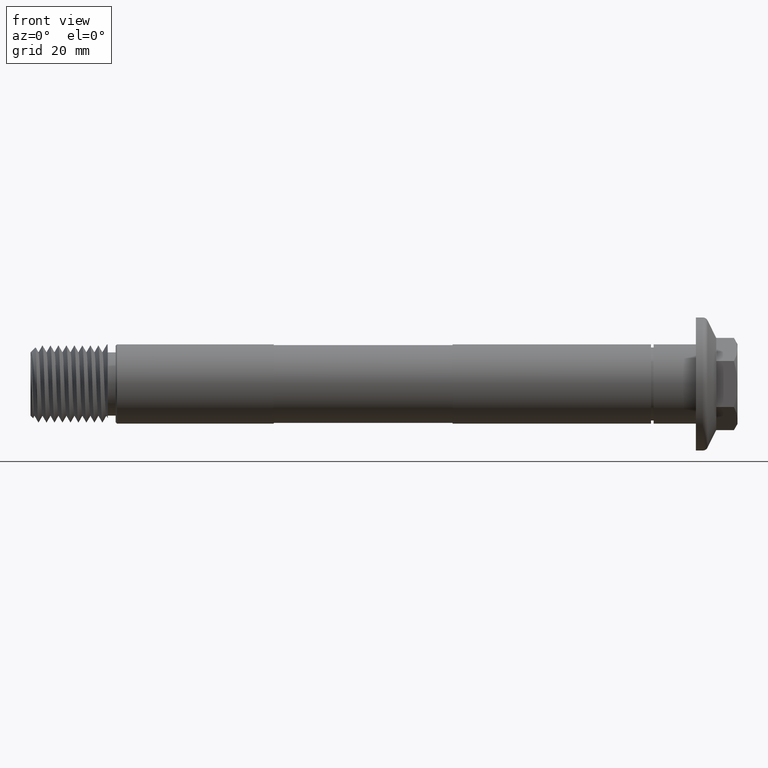
[diagram: clean part render]
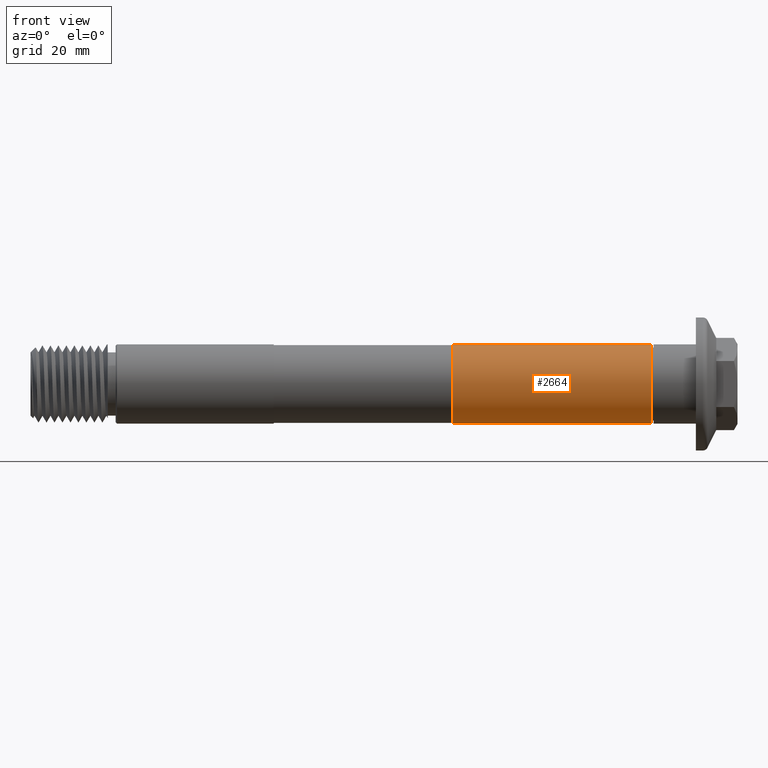
[diagram: same view with one face highlighted and labeled with its STEP entity id]
A machine part, front view. The second image highlights one B-rep face of the part: STEP entity #2664.
In plain terms, the highlighted cylindrical surface (partial cylindrical patch) has radius 7.4549 mm, axis along (-1, -0, -0).
Its self-contained STEP definition (entity closure, byte-faithful):
#57 = EDGE_CURVE ( 'NONE', #459, #2914, #1939, .T. ) ;
#185 = DIRECTION ( 'NONE',  ( -1.000000000000000000, 0.000000000000000000, 0.000000000000000000 ) ) ;
#252 = CARTESIAN_POINT ( 'NONE',  ( 125.0000000000000000, 0.000000000000000000, 7.454899999999999416 ) ) ;
#294 = VECTOR ( 'NONE', #493, 1000.000000000000000 ) ;
#305 = VECTOR ( 'NONE', #395, 1000.000000000000000 ) ;
#306 = ORIENTED_EDGE ( 'NONE', *, *, #1095, .F. ) ;
#395 = DIRECTION ( 'NONE',  ( -1.000000000000000000, -0.000000000000000000, -0.000000000000000000 ) ) ;
#402 = CARTESIAN_POINT ( 'NONE',  ( 79.29999999999999716, 0.000000000000000000, 7.454899999999999416 ) ) ;
#459 = VERTEX_POINT ( 'NONE', #3019 ) ;
#474 = FACE_OUTER_BOUND ( 'NONE', #3018, .T. ) ;
#493 = DIRECTION ( 'NONE',  ( -1.000000000000000000, -0.000000000000000000, -0.000000000000000000 ) ) ;
#731 = VERTEX_POINT ( 'NONE', #2344 ) ;
#815 = EDGE_CURVE ( 'NONE', #731, #1211, #1096, .T. ) ;
#873 = ORIENTED_EDGE ( 'NONE', *, *, #57, .F. ) ;
#1072 = DIRECTION ( 'NONE',  ( 0.000000000000000000, 0.000000000000000000, -1.000000000000000000 ) ) ;
#1089 = CARTESIAN_POINT ( 'NONE',  ( 116.5600000000000165, 0.000000000000000000, 0.000000000000000000 ) ) ;
#1095 = EDGE_CURVE ( 'NONE', #2914, #1211, #2161, .T. ) ;
#1096 = LINE ( 'NONE', #252, #294 ) ;
#1211 = VERTEX_POINT ( 'NONE', #402 ) ;
#1243 = CARTESIAN_POINT ( 'NONE',  ( 125.0000000000000000, 0.000000000000000000, 0.000000000000000000 ) ) ;
#1274 = DIRECTION ( 'NONE',  ( -1.000000000000000000, -0.000000000000000000, -0.000000000000000000 ) ) ;
#1312 = DIRECTION ( 'NONE',  ( 0.000000000000000000, 0.000000000000000000, 1.000000000000000000 ) ) ;
#1612 = AXIS2_PLACEMENT_3D ( 'NONE', #3046, #185, #1983 ) ;
#1669 = CARTESIAN_POINT ( 'NONE',  ( 125.0000000000000000, 9.129619422963602844E-16, -7.454899999999999416 ) ) ;
#1939 = LINE ( 'NONE', #1669, #305 ) ;
#1983 = DIRECTION ( 'NONE',  ( 0.000000000000000000, 0.000000000000000000, 1.000000000000000000 ) ) ;
#2161 = CIRCLE ( 'NONE', #1612, 7.454899999999999416 ) ;
#2344 = CARTESIAN_POINT ( 'NONE',  ( 116.5600000000000165, 0.000000000000000000, 7.454899999999999416 ) ) ;
#2553 = ORIENTED_EDGE ( 'NONE', *, *, #815, .T. ) ;
#2596 = CYLINDRICAL_SURFACE ( 'NONE', #2910, 7.454899999999999416 ) ;
#2664 = ADVANCED_FACE ( 'NONE', ( #474 ), #2596, .T. ) ;
#2670 = DIRECTION ( 'NONE',  ( 1.000000000000000000, 0.000000000000000000, 0.000000000000000000 ) ) ;
#2878 = EDGE_CURVE ( 'NONE', #731, #459, #3094, .T. ) ;
#2910 = AXIS2_PLACEMENT_3D ( 'NONE', #1243, #1274, #1312 ) ;
#2914 = VERTEX_POINT ( 'NONE', #3201 ) ;
#3018 = EDGE_LOOP ( 'NONE', ( #873, #3162, #2553, #306 ) ) ;
#3019 = CARTESIAN_POINT ( 'NONE',  ( 116.5600000000000165, 9.129619422963602844E-16, -7.454899999999999416 ) ) ;
#3046 = CARTESIAN_POINT ( 'NONE',  ( 79.29999999999999716, 0.000000000000000000, 0.000000000000000000 ) ) ;
#3094 = CIRCLE ( 'NONE', #3374, 7.454899999999999416 ) ;
#3162 = ORIENTED_EDGE ( 'NONE', *, *, #2878, .F. ) ;
#3201 = CARTESIAN_POINT ( 'NONE',  ( 79.29999999999999716, 9.129619422963602844E-16, -7.454899999999999416 ) ) ;
#3374 = AXIS2_PLACEMENT_3D ( 'NONE', #1089, #2670, #1072 ) ;